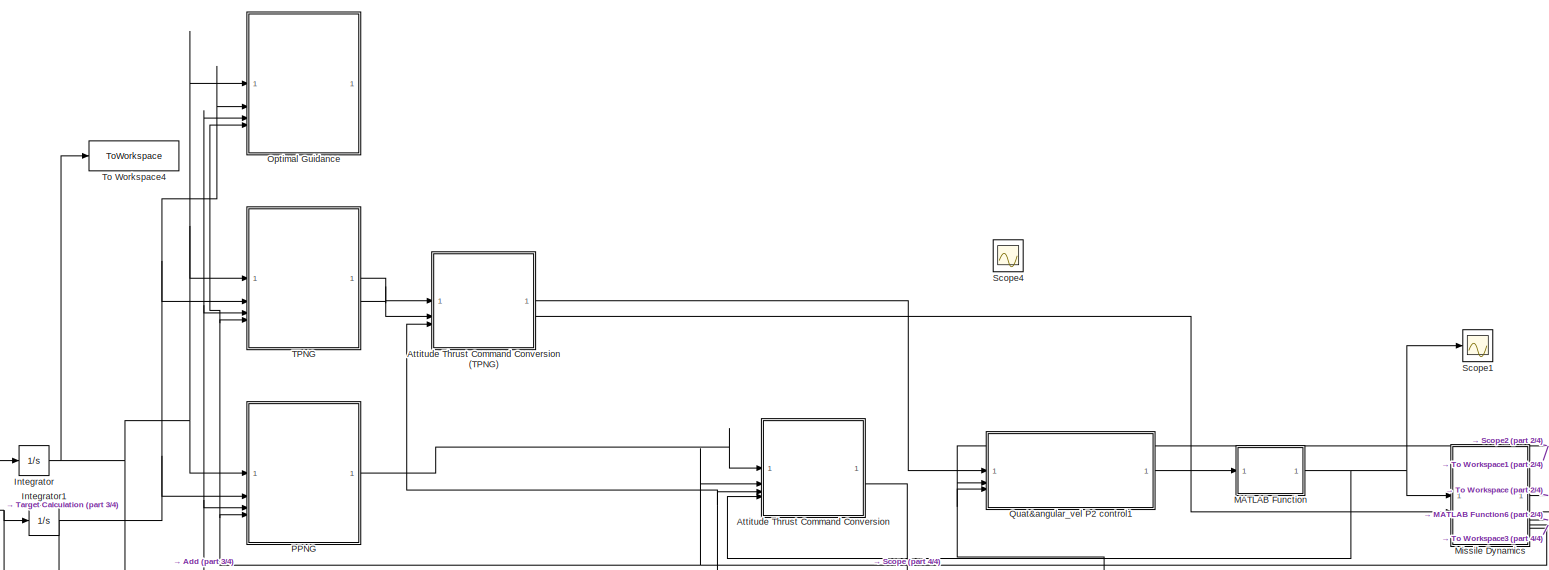
[diagram: root canvas - part 1/4, full width, top band]
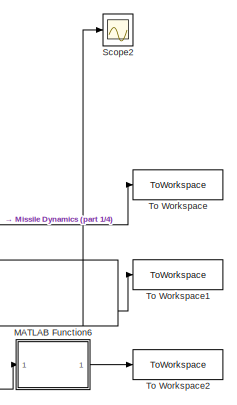
[diagram: root canvas - part 2/4, middle right region]
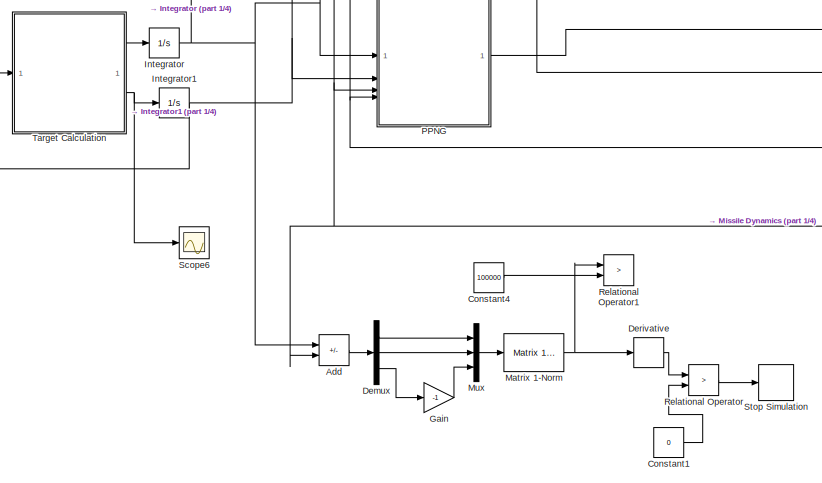
[diagram: root canvas - part 3/4, bottom left region]
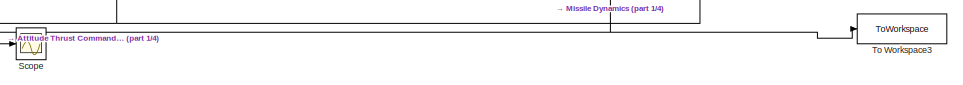
[diagram: root canvas - part 4/4, bottom right region]
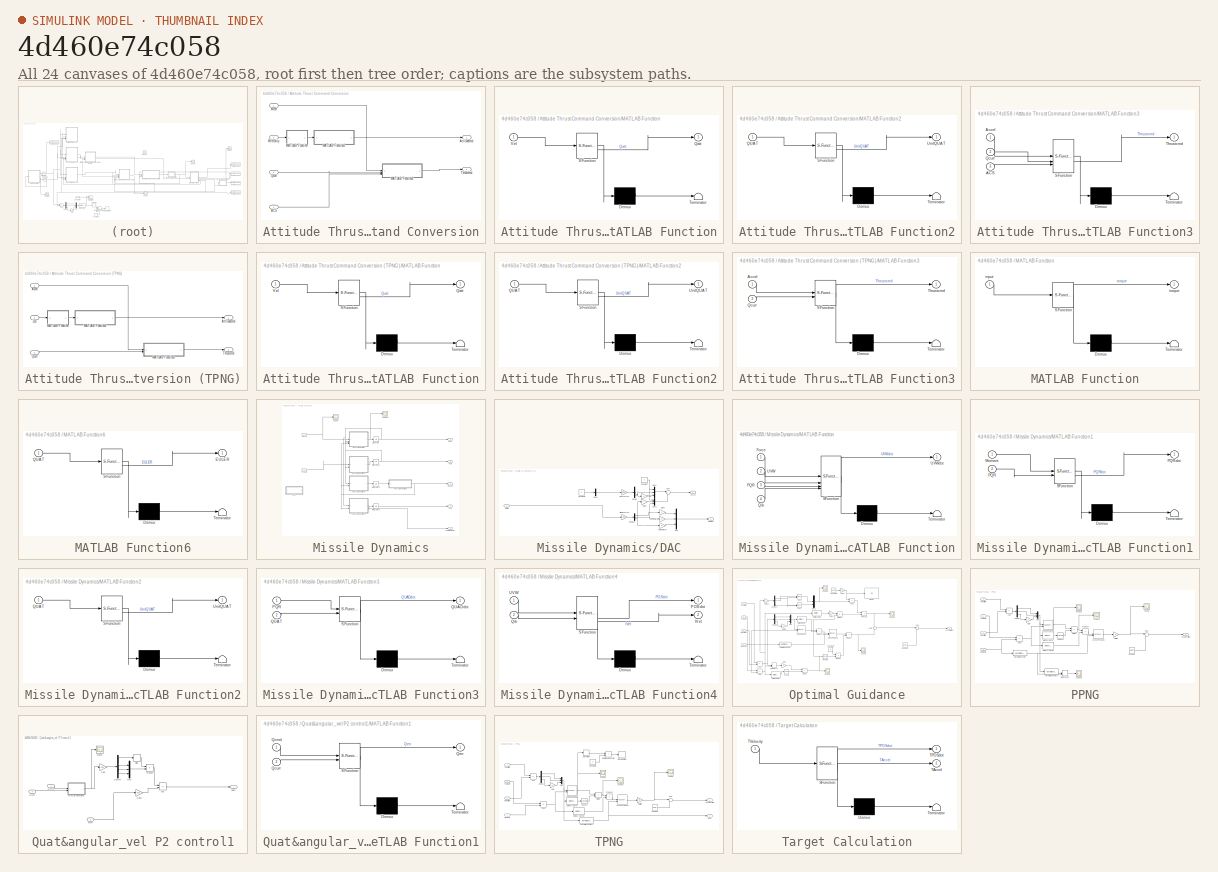
[diagram: thumbnail index - all 24 canvases of the model, root first then tree order]
MODEL slx_4d460e74c058
KIND model
CONFIG AbsTol = auto
CONFIG EnableMultiTasking = off
CONFIG FixedStep = auto
CONFIG InitFcn = DACSpara
CONFIG MaxStep = auto
CONFIG MinStep = auto
CONFIG RelTol = 1e-3
CONFIG SampleTimeConstraint = Unconstrained
CONFIG SolverName = VariableStepAuto
CONFIG StartTime = 0.0
CONFIG StopTime = 60
BLOCK [Sum] Add
  IconShape = rectangular
  Inputs = +-
BLOCK [SubSystem] Attitude Thrust Command Conversion
BLOCK [SubSystem] Attitude Thrust Command Conversion (TPNG)
BLOCK [Inport] Attitude Thrust Command Conversion (TPNG)/Accel
BLOCK [Outport] Attitude Thrust Command Conversion (TPNG)/Attitudecmd
BLOCK [Inport] Attitude Thrust Command Conversion (TPNG)/LoS
  Port = 2
BLOCK [SubSystem] Attitude Thrust Command Conversion (TPNG)/MATLAB Function
  ErrorFcn = Stateflow.Translate.translate
  LibrarySourceBlock = simulink/User-Defined\nFunctions/MATLAB Function
  PermitHierarchicalResolution = ExplicitOnly
  SFBlockType = MATLAB Function
  TreatAsAtomicUnit = on
BLOCK [Demux] Attitude Thrust Command Conversion (TPNG)/MATLAB Function/ Demux 
  Outputs = 1
BLOCK [S-Function] Attitude Thrust Command Conversion (TPNG)/MATLAB Function/ SFunction 
  EnableBusSupport = on
  FunctionName = sf_sfun
  PortCounts = [1 2]
  SFcnIsStateOwnerBlock = off
  SFunctionDeploymentMode = off
  Tag = Stateflow S-Function 15
BLOCK [Terminator] Attitude Thrust Command Conversion (TPNG)/MATLAB Function/ Terminator 
BLOCK [Outport] Attitude Thrust Command Conversion (TPNG)/MATLAB Function/Qatt
BLOCK [Inport] Attitude Thrust Command Conversion (TPNG)/MATLAB Function/Vel
BLOCK [SubSystem] Attitude Thrust Command Conversion (TPNG)/MATLAB Function2
  ErrorFcn = Stateflow.Translate.translate
  LibrarySourceBlock = simulink/User-Defined\nFunctions/MATLAB Function
  PermitHierarchicalResolution = ExplicitOnly
  SFBlockType = MATLAB Function
  TreatAsAtomicUnit = on
BLOCK [Demux] Attitude Thrust Command Conversion (TPNG)/MATLAB Function2/ Demux 
  Outputs = 1
BLOCK [S-Function] Attitude Thrust Command Conversion (TPNG)/MATLAB Function2/ SFunction 
  EnableBusSupport = on
  FunctionName = sf_sfun
  PortCounts = [1 2]
  SFcnIsStateOwnerBlock = off
  SFunctionDeploymentMode = off
  Tag = Stateflow S-Function 16
BLOCK [Terminator] Attitude Thrust Command Conversion (TPNG)/MATLAB Function2/ Terminator 
BLOCK [Inport] Attitude Thrust Command Conversion (TPNG)/MATLAB Function2/QUAT
BLOCK [Outport] Attitude Thrust Command Conversion (TPNG)/MATLAB Function2/UnitQUAT
BLOCK [SubSystem] Attitude Thrust Command Conversion (TPNG)/MATLAB Function3
  ErrorFcn = Stateflow.Translate.translate
  LibrarySourceBlock = simulink/User-Defined\nFunctions/MATLAB Function
  PermitHierarchicalResolution = ExplicitOnly
  SFBlockType = MATLAB Function
  TreatAsAtomicUnit = on
BLOCK [Demux] Attitude Thrust Command Conversion (TPNG)/MATLAB Function3/ Demux 
  Outputs = 1
BLOCK [S-Function] Attitude Thrust Command Conversion (TPNG)/MATLAB Function3/ SFunction 
  EnableBusSupport = on
  FunctionName = sf_sfun
  Parameters = Dmax,M
  PortCounts = [2 2]
  SFcnIsStateOwnerBlock = off
  SFunctionDeploymentMode = off
  Tag = Stateflow S-Function 17
BLOCK [Terminator] Attitude Thrust Command Conversion (TPNG)/MATLAB Function3/ Terminator 
BLOCK [Inport] Attitude Thrust Command Conversion (TPNG)/MATLAB Function3/Accel
BLOCK [Inport] Attitude Thrust Command Conversion (TPNG)/MATLAB Function3/Qcurr
  Port = 2
BLOCK [Outport] Attitude Thrust Command Conversion (TPNG)/MATLAB Function3/Thrustcmd
BLOCK [Inport] Attitude Thrust Command Conversion (TPNG)/Qcurr
  Port = 3
BLOCK [Outport] Attitude Thrust Command Conversion (TPNG)/Thrustcmd
  Port = 2
BLOCK [Inport] Attitude Thrust Command Conversion/ACS
  Port = 4
BLOCK [Inport] Attitude Thrust Command Conversion/Accel
BLOCK [Outport] Attitude Thrust Command Conversion/Attitudecmd
BLOCK [SubSystem] Attitude Thrust Command Conversion/MATLAB Function
  ErrorFcn = Stateflow.Translate.translate
  LibrarySourceBlock = simulink/User-Defined\nFunctions/MATLAB Function
  PermitHierarchicalResolution = ExplicitOnly
  SFBlockType = MATLAB Function
  TreatAsAtomicUnit = on
BLOCK [Demux] Attitude Thrust Command Conversion/MATLAB Function/ Demux 
  Outputs = 1
BLOCK [S-Function] Attitude Thrust Command Conversion/MATLAB Function/ SFunction 
  EnableBusSupport = on
  FunctionName = sf_sfun
  PortCounts = [1 2]
  SFcnIsStateOwnerBlock = off
  SFunctionDeploymentMode = off
  Tag = Stateflow S-Function 11
BLOCK [Terminator] Attitude Thrust Command Conversion/MATLAB Function/ Terminator 
BLOCK [Outport] Attitude Thrust Command Conversion/MATLAB Function/Qatt
BLOCK [Inport] Attitude Thrust Command Conversion/MATLAB Function/Vel
BLOCK [SubSystem] Attitude Thrust Command Conversion/MATLAB Function2
  ErrorFcn = Stateflow.Translate.translate
  LibrarySourceBlock = simulink/User-Defined\nFunctions/MATLAB Function
  PermitHierarchicalResolution = ExplicitOnly
  SFBlockType = MATLAB Function
  TreatAsAtomicUnit = on
BLOCK [Demux] Attitude Thrust Command Conversion/MATLAB Function2/ Demux 
  Outputs = 1
BLOCK [S-Function] Attitude Thrust Command Conversion/MATLAB Function2/ SFunction 
  EnableBusSupport = on
  FunctionName = sf_sfun
  PortCounts = [1 2]
  SFcnIsStateOwnerBlock = off
  SFunctionDeploymentMode = off
  Tag = Stateflow S-Function 30
BLOCK [Terminator] Attitude Thrust Command Conversion/MATLAB Function2/ Terminator 
BLOCK [Inport] Attitude Thrust Command Conversion/MATLAB Function2/QUAT
BLOCK [Outport] Attitude Thrust Command Conversion/MATLAB Function2/UnitQUAT
BLOCK [SubSystem] Attitude Thrust Command Conversion/MATLAB Function3
  ErrorFcn = Stateflow.Translate.translate
  LibrarySourceBlock = simulink/User-Defined\nFunctions/MATLAB Function
  PermitHierarchicalResolution = ExplicitOnly
  SFBlockType = MATLAB Function
  TreatAsAtomicUnit = on
BLOCK [Demux] Attitude Thrust Command Conversion/MATLAB Function3/ Demux 
  Outputs = 1
BLOCK [S-Function] Attitude Thrust Command Conversion/MATLAB Function3/ SFunction 
  EnableBusSupport = on
  FunctionName = sf_sfun
  Parameters = Dmax,M,lx
  PortCounts = [3 2]
  SFcnIsStateOwnerBlock = off
  SFunctionDeploymentMode = off
  Tag = Stateflow S-Function 13
BLOCK [Terminator] Attitude Thrust Command Conversion/MATLAB Function3/ Terminator 
BLOCK [Inport] Attitude Thrust Command Conversion/MATLAB Function3/ACS
  Port = 3
BLOCK [Inport] Attitude Thrust Command Conversion/MATLAB Function3/Accel
BLOCK [Inport] Attitude Thrust Command Conversion/MATLAB Function3/Qcurr
  Port = 2
BLOCK [Outport] Attitude Thrust Command Conversion/MATLAB Function3/Thrustcmd
BLOCK [Inport] Attitude Thrust Command Conversion/MVelocity
  Port = 2
BLOCK [Inport] Attitude Thrust Command Conversion/Qcurr
  Port = 3
BLOCK [Outport] Attitude Thrust Command Conversion/Thrustcmd
  Port = 2
BLOCK [Constant] Constant1
  Value = 0
BLOCK [Constant] Constant4
  Value = 100000
BLOCK [Demux] Demux
  Outputs = 3
BLOCK [Derivative] Derivative
BLOCK [Gain] Gain
  Gain = -1
BLOCK [Integrator] Integrator
  InitialCondition = TPosition
BLOCK [Integrator] Integrator1
  InitialCondition = [0;Va;0]
BLOCK [SubSystem] MATLAB Function
  ErrorFcn = Stateflow.Translate.translate
  LibrarySourceBlock = simulink/User-Defined\nFunctions/MATLAB Function
  PermitHierarchicalResolution = ExplicitOnly
  SFBlockType = MATLAB Function
  TreatAsAtomicUnit = on
BLOCK [Demux] MATLAB Function/ Demux 
  Outputs = 1
BLOCK [S-Function] MATLAB Function/ SFunction 
  EnableBusSupport = on
  FunctionName = sf_sfun
  Parameters = Amax,lx,ly
  PortCounts = [1 2]
  SFcnIsStateOwnerBlock = off
  SFunctionDeploymentMode = off
  Tag = Stateflow S-Function 18
BLOCK [Terminator] MATLAB Function/ Terminator 
BLOCK [Inport] MATLAB Function/input
BLOCK [Outport] MATLAB Function/torque
BLOCK [SubSystem] MATLAB Function6
  ErrorFcn = Stateflow.Translate.translate
  LibrarySourceBlock = simulink/User-Defined\nFunctions/MATLAB Function
  PermitHierarchicalResolution = ExplicitOnly
  SFBlockType = MATLAB Function
  TreatAsAtomicUnit = on
BLOCK [Demux] MATLAB Function6/ Demux 
  Outputs = 1
BLOCK [S-Function] MATLAB Function6/ SFunction 
  EnableBusSupport = on
  FunctionName = sf_sfun
  PortCounts = [1 2]
  SFcnIsStateOwnerBlock = off
  SFunctionDeploymentMode = off
  Tag = Stateflow S-Function 7
BLOCK [Terminator] MATLAB Function6/ Terminator 
BLOCK [Outport] MATLAB Function6/EULER
BLOCK [Inport] MATLAB Function6/QUAT
BLOCK [Reference] Matrix 1-Norm  REF=dspmtrx3/Matrix 
1-Norm
  SourceBlock = dspmtrx3/Matrix \n1-Norm
  SourceType = Matrix 1-Norm
BLOCK [SubSystem] Missile Dynamics
  NameLocation = top
BLOCK [SubSystem] Missile Dynamics/DAC
BLOCK [Inport] Missile Dynamics/DAC/Attdelta
BLOCK [Gain] Missile Dynamics/DAC/Attitude Thrust
  Gain = Amax
BLOCK [Constant] Missile Dynamics/DAC/Constant
  Value = 0
BLOCK [Constant] Missile Dynamics/DAC/Constant1
BLOCK [Demux] Missile Dynamics/DAC/Demux
  Outputs = 3
BLOCK [Demux] Missile Dynamics/DAC/Demux2
  Outputs = 3
BLOCK [Gain] Missile Dynamics/DAC/Divert Thrust
  Gain = Dmax
BLOCK [Outport] Missile Dynamics/DAC/Force
BLOCK [Gain] Missile Dynamics/DAC/Gain
  Gain = -1
BLOCK [Gain] Missile Dynamics/DAC/Gain1
  Gain = -1
BLOCK [Gain] Missile Dynamics/DAC/Gain2
  Gain = ly
BLOCK [Outport] Missile Dynamics/DAC/Moment
  Port = 2
BLOCK [Mux] Missile Dynamics/DAC/Mux
  DisplayOption = bar
  Inputs = 3
BLOCK [Mux] Missile Dynamics/DAC/Mux1
  DisplayOption = bar
  Inputs = 3
BLOCK [Mux] Missile Dynamics/DAC/Mux2
  DisplayOption = bar
  Inputs = 3
BLOCK [Mux] Missile Dynamics/DAC/Mux3
  DisplayOption = bar
  Inputs = 3
BLOCK [Sum] Missile Dynamics/DAC/Sum
  Inputs = |++
BLOCK [Gain] Missile Dynamics/DAC/moment arm
  Gain = lx
BLOCK [Gain] Missile Dynamics/DAC/moment arm1
  Gain = lx
BLOCK [Outport] Missile Dynamics/EULER
  Port = 3
BLOCK [Inport] Missile Dynamics/Force
  Port = 2
BLOCK [Outport] Missile Dynamics/Inerttial Velocity
  Port = 5
BLOCK [Integrator] Missile Dynamics/Integrator
  InitialCondition = UVWinit
BLOCK [Integrator] Missile Dynamics/Integrator1
  InitialCondition = PQRinit
BLOCK [Integrator] Missile Dynamics/Integrator2
  InitialCondition = Quatinit
BLOCK [Integrator] Missile Dynamics/Integrator3
  InitialCondition = POSinit
BLOCK [SubSystem] Missile Dynamics/MATLAB Function
  ErrorFcn = Stateflow.Translate.translate
  PermitHierarchicalResolution = ExplicitOnly
  SFBlockType = MATLAB Function
  TreatAsAtomicUnit = on
BLOCK [Demux] Missile Dynamics/MATLAB Function/ Demux 
  Outputs = 1
BLOCK [S-Function] Missile Dynamics/MATLAB Function/ SFunction 
  EnableBusSupport = on
  FunctionName = sf_sfun
  Parameters = M
  PortCounts = [4 2]
  SFcnIsStateOwnerBlock = off
  SFunctionDeploymentMode = off
  Tag = Stateflow S-Function 2
BLOCK [Terminator] Missile Dynamics/MATLAB Function/ Terminator 
BLOCK [Inport] Missile Dynamics/MATLAB Function/Force
BLOCK [Inport] Missile Dynamics/MATLAB Function/PQR
  Port = 3
BLOCK [Inport] Missile Dynamics/MATLAB Function/Qib
  Port = 4
BLOCK [Inport] Missile Dynamics/MATLAB Function/UVW
  Port = 2
BLOCK [Outport] Missile Dynamics/MATLAB Function/UVWdot
  VectorParamsAs1DForOutWhenUnconnected = off
BLOCK [SubSystem] Missile Dynamics/MATLAB Function1
  ErrorFcn = Stateflow.Translate.translate
  LibrarySourceBlock = simulink/User-Defined\nFunctions/MATLAB Function
  PermitHierarchicalResolution = ExplicitOnly
  SFBlockType = MATLAB Function
  TreatAsAtomicUnit = on
BLOCK [Demux] Missile Dynamics/MATLAB Function1/ Demux 
  Outputs = 1
BLOCK [S-Function] Missile Dynamics/MATLAB Function1/ SFunction 
  EnableBusSupport = on
  FunctionName = sf_sfun
  Parameters = Ixx,Iyy,Izz
  PortCounts = [2 2]
  SFcnIsStateOwnerBlock = off
  SFunctionDeploymentMode = off
  Tag = Stateflow S-Function 1
BLOCK [Terminator] Missile Dynamics/MATLAB Function1/ Terminator 
BLOCK [Inport] Missile Dynamics/MATLAB Function1/Moment
BLOCK [Inport] Missile Dynamics/MATLAB Function1/PQR
  Port = 2
BLOCK [Outport] Missile Dynamics/MATLAB Function1/PQRdot
BLOCK [SubSystem] Missile Dynamics/MATLAB Function2
  ErrorFcn = Stateflow.Translate.translate
  LibrarySourceBlock = simulink/User-Defined\nFunctions/MATLAB Function
  PermitHierarchicalResolution = ExplicitOnly
  SFBlockType = MATLAB Function
  TreatAsAtomicUnit = on
BLOCK [Demux] Missile Dynamics/MATLAB Function2/ Demux 
  Outputs = 1
BLOCK [S-Function] Missile Dynamics/MATLAB Function2/ SFunction 
  EnableBusSupport = on
  FunctionName = sf_sfun
  PortCounts = [1 2]
  SFcnIsStateOwnerBlock = off
  SFunctionDeploymentMode = off
  Tag = Stateflow S-Function 5
BLOCK [Terminator] Missile Dynamics/MATLAB Function2/ Terminator 
BLOCK [Inport] Missile Dynamics/MATLAB Function2/QUAT
BLOCK [Outport] Missile Dynamics/MATLAB Function2/UnitQUAT
BLOCK [SubSystem] Missile Dynamics/MATLAB Function3
  ErrorFcn = Stateflow.Translate.translate
  PermitHierarchicalResolution = ExplicitOnly
  SFBlockType = MATLAB Function
  TreatAsAtomicUnit = on
BLOCK [Demux] Missile Dynamics/MATLAB Function3/ Demux 
  Outputs = 1
BLOCK [S-Function] Missile Dynamics/MATLAB Function3/ SFunction 
  EnableBusSupport = on
  FunctionName = sf_sfun
  PortCounts = [2 2]
  SFcnIsStateOwnerBlock = off
  SFunctionDeploymentMode = off
  Tag = Stateflow S-Function 3
BLOCK [Terminator] Missile Dynamics/MATLAB Function3/ Terminator 
BLOCK [Inport] Missile Dynamics/MATLAB Function3/PQR
BLOCK [Outport] Missile Dynamics/MATLAB Function3/QUADdot
  VectorParamsAs1DForOutWhenUnconnected = off
BLOCK [Inport] Missile Dynamics/MATLAB Function3/QUAT
  Port = 2
BLOCK [SubSystem] Missile Dynamics/MATLAB Function4
  ErrorFcn = Stateflow.Translate.translate
  PermitHierarchicalResolution = ExplicitOnly
  SFBlockType = MATLAB Function
  TreatAsAtomicUnit = on
BLOCK [Demux] Missile Dynamics/MATLAB Function4/ Demux 
  Outputs = 1
BLOCK [S-Function] Missile Dynamics/MATLAB Function4/ SFunction 
  EnableBusSupport = on
  FunctionName = sf_sfun
  PortCounts = [2 3]
  SFcnIsStateOwnerBlock = off
  SFunctionDeploymentMode = off
  Tag = Stateflow S-Function 4
BLOCK [Terminator] Missile Dynamics/MATLAB Function4/ Terminator 
BLOCK [Outport] Missile Dynamics/MATLAB Function4/IVel
  Port = 2
BLOCK [Outport] Missile Dynamics/MATLAB Function4/POSdot
  VectorParamsAs1DForOutWhenUnconnected = off
BLOCK [Inport] Missile Dynamics/MATLAB Function4/Qib
  Port = 2
BLOCK [Inport] Missile Dynamics/MATLAB Function4/UVW
BLOCK [Outport] Missile Dynamics/PQR
  Port = 2
BLOCK [Scope] Missile Dynamics/Scope
  Floating = off
  NumInputPorts = 1
  ScopeSpecificationString = Simulink.scopes.TimeScopeBlockCfg('CurrentConfiguration', extmgr.ConfigurationSet(extmgr.Configuration('Core','General UI',true),extmgr.Configuration('Core','Source UI',true),extmgr.Configuration('Sources','WiredSimulink',true,'DataLoggingVariableName','ScopeData4'),extmgr.Configuration('Visuals','Time Domain',true,'SerializedDisplays',{struct('MinYLimReal','-6768.875','MaxYLimReal','6768.87496','...<+1464ch>
BLOCK [Scope] Missile Dynamics/Scope3
  Floating = off
  NumInputPorts = 1
  ScopeSpecificationString = Simulink.scopes.TimeScopeBlockCfg('CurrentConfiguration', extmgr.ConfigurationSet(extmgr.Configuration('Core','General UI',true),extmgr.Configuration('Core','Source UI',true),extmgr.Configuration('Sources','WiredSimulink',true,'DataLoggingVariableName','ScopeData9'),extmgr.Configuration('Visuals','Time Domain',true,'SerializedDisplays',{struct('MinYLimReal','-83.3866','MaxYLimReal','104.98964','YL...<+1451ch>
BLOCK [Inport] Missile Dynamics/Torque
BLOCK [Outport] Missile Dynamics/UVW
BLOCK [Outport] Missile Dynamics/XYH
  Port = 4
BLOCK [Mux] Mux
  DisplayOption = bar
  Inputs = 3
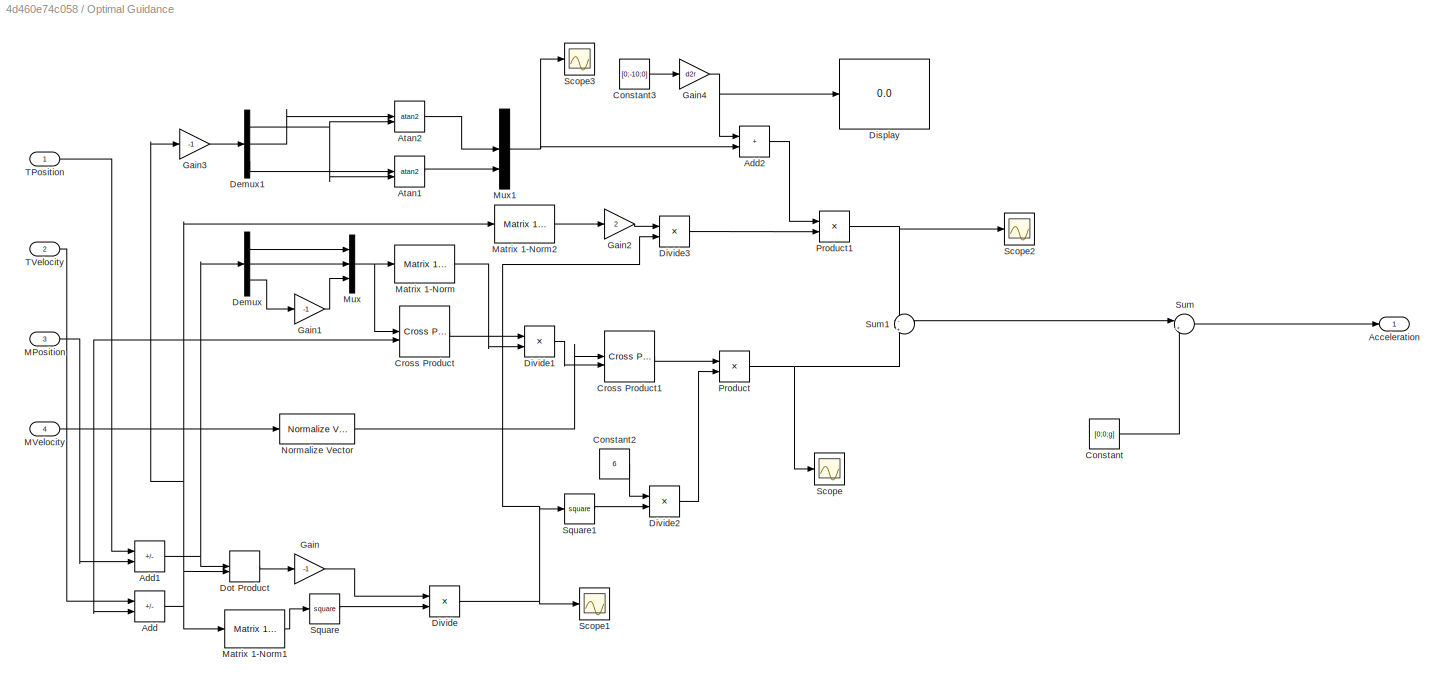
BLOCK [SubSystem] Optimal Guidance
BLOCK [Outport] Optimal Guidance/Acceleration
BLOCK [Sum] Optimal Guidance/Add
  IconShape = rectangular
  Inputs = +-
BLOCK [Sum] Optimal Guidance/Add1
  IconShape = rectangular
  Inputs = +-
BLOCK [Sum] Optimal Guidance/Add2
  IconShape = rectangular
BLOCK [Trigonometry] Optimal Guidance/Atan1
  Operator = atan2
BLOCK [Trigonometry] Optimal Guidance/Atan2
  Operator = atan2
BLOCK [Constant] Optimal Guidance/Constant
  Value = [0;0;g]
BLOCK [Constant] Optimal Guidance/Constant2
  Value = 6
BLOCK [Constant] Optimal Guidance/Constant3
  Value = [0;-10;0]
BLOCK [Reference] Optimal Guidance/Cross Product  REF=matrix_library/Cross Product
  LibrarySourceBlock = simulink/Matrix\nOperations/Cross Product
  SourceBlock = matrix_library/Cross Product
  SourceType = CrossProduct
BLOCK [Reference] Optimal Guidance/Cross Product1  REF=matrix_library/Cross Product
  LibrarySourceBlock = simulink/Matrix\nOperations/Cross Product
  SourceBlock = matrix_library/Cross Product
  SourceType = CrossProduct
BLOCK [Demux] Optimal Guidance/Demux
  Outputs = 3
BLOCK [Demux] Optimal Guidance/Demux1
  Outputs = 3
BLOCK [Display] Optimal Guidance/Display
  Decimation = 1
BLOCK [Product] Optimal Guidance/Divide
  Inputs = */
BLOCK [Product] Optimal Guidance/Divide1
  Inputs = */
BLOCK [Product] Optimal Guidance/Divide2
  Inputs = */
BLOCK [Product] Optimal Guidance/Divide3
  Inputs = */
BLOCK [DotProduct] Optimal Guidance/Dot Product
  OutDataTypeStr = Inherit: Inherit via internal rule
BLOCK [Gain] Optimal Guidance/Gain
  Gain = -1
BLOCK [Gain] Optimal Guidance/Gain1
  Gain = -1
BLOCK [Gain] Optimal Guidance/Gain2
  Gain = 2
BLOCK [Gain] Optimal Guidance/Gain3
  Gain = -1
BLOCK [Gain] Optimal Guidance/Gain4
  Gain = d2r
BLOCK [Inport] Optimal Guidance/MPosition
  Port = 3
BLOCK [Inport] Optimal Guidance/MVelocity
  Port = 4
BLOCK [Reference] Optimal Guidance/Matrix 1-Norm  REF=dspmtrx3/Matrix 
1-Norm
  SourceBlock = dspmtrx3/Matrix \n1-Norm
  SourceType = Matrix 1-Norm
BLOCK [Reference] Optimal Guidance/Matrix 1-Norm1  REF=dspmtrx3/Matrix 
1-Norm
  SourceBlock = dspmtrx3/Matrix \n1-Norm
  SourceType = Matrix 1-Norm
BLOCK [Reference] Optimal Guidance/Matrix 1-Norm2  REF=dspmtrx3/Matrix 
1-Norm
  SourceBlock = dspmtrx3/Matrix \n1-Norm
  SourceType = Matrix 1-Norm
BLOCK [Mux] Optimal Guidance/Mux
  DisplayOption = bar
  Inputs = 3
BLOCK [Mux] Optimal Guidance/Mux1
  DisplayOption = bar
  Inputs = 3
BLOCK [Reference] Optimal Guidance/Normalize Vector  REF=vrlib/Utilities/Normalize Vector
  SourceBlock = vrlib/Utilities/Normalize Vector
  SourceType = Normalize Vector
BLOCK [Product] Optimal Guidance/Product
BLOCK [Product] Optimal Guidance/Product1
BLOCK [Scope] Optimal Guidance/Scope
  Floating = off
  NumInputPorts = 1
  ScopeSpecificationString = Simulink.scopes.TimeScopeBlockCfg('CurrentConfiguration', extmgr.ConfigurationSet(extmgr.Configuration('Core','General UI',true),extmgr.Configuration('Core','Source UI',true),extmgr.Configuration('Sources','WiredSimulink',true,'DataLoggingVariableName','ScopeData1'),extmgr.Configuration('Visuals','Time Domain',true,'SerializedDisplays',{struct('MinYLimReal','-70076136429.61131','MaxYLimReal','1615...<+1499ch>
BLOCK [Scope] Optimal Guidance/Scope1
  Floating = off
  NumInputPorts = 1
  ScopeSpecificationString = Simulink.scopes.TimeScopeBlockCfg('CurrentConfiguration', extmgr.ConfigurationSet(extmgr.Configuration('Core','General UI',true),extmgr.Configuration('Core','Source UI',true),extmgr.Configuration('Sources','WiredSimulink',true,'DataLoggingVariableName','ScopeData2'),extmgr.Configuration('Visuals','Time Domain',true,'SerializedDisplays',{struct('MinYLimReal','-2.65264','MaxYLimReal','33.8738','YLab...<+1413ch>
BLOCK [Scope] Optimal Guidance/Scope2
  Floating = off
  NumInputPorts = 1
  ScopeSpecificationString = Simulink.scopes.TimeScopeBlockCfg('CurrentConfiguration', extmgr.ConfigurationSet(extmgr.Configuration('Core','General UI',true),extmgr.Configuration('Core','Source UI',true),extmgr.Configuration('Sources','WiredSimulink',true,'DataLoggingVariableName','ScopeData3'),extmgr.Configuration('Visuals','Time Domain',true,'SerializedDisplays',{struct('MinYLimReal','-14092128.95872','MaxYLimReal','2837584...<+1474ch>
BLOCK [Scope] Optimal Guidance/Scope3
  Floating = off
  NumInputPorts = 1
  ScopeSpecificationString = Simulink.scopes.TimeScopeBlockCfg('CurrentConfiguration', extmgr.ConfigurationSet(extmgr.Configuration('Core','General UI',true),extmgr.Configuration('Core','Source UI',true),extmgr.Configuration('Sources','WiredSimulink',true,'DataLoggingVariableName','ScopeData5'),extmgr.Configuration('Visuals','Time Domain',true,'SerializedDisplays',{struct('MinYLimReal','-0.47592','MaxYLimReal','1.83389','YLab...<+1413ch>
BLOCK [Math] Optimal Guidance/Square
  Operator = square
BLOCK [Math] Optimal Guidance/Square1
  Operator = square
BLOCK [Sum] Optimal Guidance/Sum
  Inputs = |+-
BLOCK [Sum] Optimal Guidance/Sum1
  Inputs = -|+
BLOCK [Inport] Optimal Guidance/TPosition
BLOCK [Inport] Optimal Guidance/TVelocity
  Port = 2
BLOCK [SubSystem] PPNG
BLOCK [Outport] PPNG/Acceleration
BLOCK [Sum] PPNG/Add
  IconShape = rectangular
  Inputs = +-
BLOCK [Sum] PPNG/Add1
  IconShape = rectangular
  Inputs = +-
BLOCK [Constant] PPNG/Constant
  Value = [0;0;g]
BLOCK [Reference] PPNG/Cross Product  REF=matrix_library/Cross Product
  LibrarySourceBlock = simulink/Matrix\nOperations/Cross Product
  SourceBlock = matrix_library/Cross Product
  SourceType = CrossProduct
BLOCK [Reference] PPNG/Cross Product1  REF=matrix_library/Cross Product
  LibrarySourceBlock = simulink/Matrix\nOperations/Cross Product
  SourceBlock = matrix_library/Cross Product
  SourceType = CrossProduct
BLOCK [Demux] PPNG/Demux
  Outputs = 3
BLOCK [Product] PPNG/Divide
  Inputs = */
BLOCK [DotProduct] PPNG/Dot Product
  OutDataTypeStr = Inherit: Inherit via internal rule
BLOCK [Gain] PPNG/Gain
  Gain = -1
BLOCK [Inport] PPNG/MPosition
  Port = 3
BLOCK [Inport] PPNG/MVelocity
  Port = 4
BLOCK [Reference] PPNG/Matrix 1-Norm  REF=dspmtrx3/Matrix 
1-Norm
  SourceBlock = dspmtrx3/Matrix \n1-Norm
  SourceType = Matrix 1-Norm
BLOCK [Reference] PPNG/Matrix 1-Norm1  REF=dspmtrx3/Matrix 
1-Norm
  SourceBlock = dspmtrx3/Matrix \n1-Norm
  SourceType = Matrix 1-Norm
BLOCK [Gain] PPNG/Multiply
  Gain = N
BLOCK [Mux] PPNG/Mux
  DisplayOption = bar
  Inputs = 3
BLOCK [Reference] PPNG/Normalize Vector  REF=vrlib/Utilities/Normalize Vector
  SourceBlock = vrlib/Utilities/Normalize Vector
  SourceType = Normalize Vector
BLOCK [Reference] PPNG/Normalize Vector1  REF=vrlib/Utilities/Normalize Vector
  SourceBlock = vrlib/Utilities/Normalize Vector
  SourceType = Normalize Vector
BLOCK [Product] PPNG/Product
BLOCK [Scope] PPNG/Scope
  Floating = off
  NumInputPorts = 1
  ScopeSpecificationString = Simulink.scopes.TimeScopeBlockCfg('CurrentConfiguration', extmgr.ConfigurationSet(extmgr.Configuration('Core','General UI',true),extmgr.Configuration('Core','Source UI',true),extmgr.Configuration('Sources','WiredSimulink',true,'DataLoggingVariableName','ScopeData5'),extmgr.Configuration('Visuals','Time Domain',true,'SerializedDisplays',{struct('MinYLimReal','-1377262499913.35889','MaxYLimReal','15...<+1514ch>
BLOCK [Scope] PPNG/Scope1
  Floating = off
  NumInputPorts = 1
  ScopeSpecificationString = Simulink.scopes.TimeScopeBlockCfg('CurrentConfiguration', extmgr.ConfigurationSet(extmgr.Configuration('Core','General UI',true),extmgr.Configuration('Core','Source UI',true),extmgr.Configuration('Sources','WiredSimulink',true,'DataLoggingVariableName','ScopeData6'),extmgr.Configuration('Visuals','Time Domain',true,'SerializedDisplays',{struct('MinYLimReal','-3743.29351','MaxYLimReal','33821.52739...<+1472ch>
BLOCK [Scope] PPNG/Scope2
  Floating = off
  NumInputPorts = 1
  ScopeSpecificationString = Simulink.scopes.TimeScopeBlockCfg('CurrentConfiguration', extmgr.ConfigurationSet(extmgr.Configuration('Core','General UI',true),extmgr.Configuration('Core','Source UI',true),extmgr.Configuration('Sources','WiredSimulink',true,'DataLoggingVariableName','ScopeData7'),extmgr.Configuration('Visuals','Time Domain',true,'SerializedDisplays',{struct('MinYLimReal','-23896560.26406','MaxYLimReal','6323363...<+1466ch>
BLOCK [Scope] PPNG/Scope3
  Floating = off
  NumInputPorts = 1
  ScopeSpecificationString = Simulink.scopes.TimeScopeBlockCfg('CurrentConfiguration', extmgr.ConfigurationSet(extmgr.Configuration('Core','General UI',true),extmgr.Configuration('Core','Source UI',true),extmgr.Configuration('Sources','WiredSimulink',true,'DataLoggingVariableName','ScopeData8'),extmgr.Configuration('Visuals','Time Domain',true,'SerializedDisplays',{struct('MinYLimReal','0.78874','MaxYLimReal','0.9975','YLabel...<+1413ch>
BLOCK [Math] PPNG/Square
  Operator = square
BLOCK [Sum] PPNG/Sum
  Inputs = |+-
BLOCK [Inport] PPNG/TPosition
BLOCK [Inport] PPNG/TVelocity
  Port = 2
BLOCK [SubSystem] Quat&angular_vel P2 control1
BLOCK [Sum] Quat&angular_vel P2 control1/Add
  IconShape = rectangular
  Inputs = +-
BLOCK [Demux] Quat&angular_vel P2 control1/Demux
BLOCK [Gain] Quat&angular_vel P2 control1/Gain
  Gain = Kp1
BLOCK [Gain] Quat&angular_vel P2 control1/Gain1
  Gain = Kp2
BLOCK [SubSystem] Quat&angular_vel P2 control1/MATLAB Function1
  ErrorFcn = Stateflow.Translate.translate
  LibrarySourceBlock = simulink/User-Defined\nFunctions/MATLAB Function
  PermitHierarchicalResolution = ExplicitOnly
  SFBlockType = MATLAB Function
  TreatAsAtomicUnit = on
BLOCK [Demux] Quat&angular_vel P2 control1/MATLAB Function1/ Demux 
  Outputs = 1
BLOCK [S-Function] Quat&angular_vel P2 control1/MATLAB Function1/ SFunction 
  EnableBusSupport = on
  FunctionName = sf_sfun
  PortCounts = [2 2]
  SFcnIsStateOwnerBlock = off
  SFunctionDeploymentMode = off
  Tag = Stateflow S-Function 6
BLOCK [Terminator] Quat&angular_vel P2 control1/MATLAB Function1/ Terminator 
BLOCK [Inport] Quat&angular_vel P2 control1/MATLAB Function1/Qcmd
BLOCK [Inport] Quat&angular_vel P2 control1/MATLAB Function1/Qcurr
  Port = 2
BLOCK [Outport] Quat&angular_vel P2 control1/MATLAB Function1/Qerr
BLOCK [Mux] Quat&angular_vel P2 control1/Mux
  DisplayOption = bar
  Inputs = 3
BLOCK [Inport] Quat&angular_vel P2 control1/PQR
  Port = 2
BLOCK [Product] Quat&angular_vel P2 control1/Product
BLOCK [Inport] Quat&angular_vel P2 control1/Qcmd
BLOCK [Inport] Quat&angular_vel P2 control1/Qcurr
  NameLocation = top
  Port = 3
BLOCK [Scope] Quat&angular_vel P2 control1/Scope
  Floating = off
  NumInputPorts = 1
  ScopeSpecificationString = Simulink.scopes.TimeScopeBlockCfg('CurrentConfiguration', extmgr.ConfigurationSet(extmgr.Configuration('Core','General UI',true),extmgr.Configuration('Core','Source UI',true),extmgr.Configuration('Sources','WiredSimulink',true,'DataLoggingVariableName','ScopeData1'),extmgr.Configuration('Visuals','Time Domain',true,'SerializedDisplays',{struct('MinYLimReal','-1.18828','MaxYLimReal','1.24314','YLab...<+1469ch>
BLOCK [Signum] Quat&angular_vel P2 control1/Sign
BLOCK [Outport] Quat&angular_vel P2 control1/delta
BLOCK [RelationalOperator] Relational Operator
  InputSameDT = off
  Operator = >
  OutDataTypeStr = boolean
  RndMeth = Simplest
BLOCK [RelationalOperator] Relational Operator1
  InputSameDT = off
  Operator = >
  OutDataTypeStr = boolean
  RndMeth = Simplest
BLOCK [Scope] Scope
  Floating = off
  NumInputPorts = 1
  ScopeSpecificationString = Simulink.scopes.TimeScopeBlockCfg('CurrentConfiguration', extmgr.ConfigurationSet(extmgr.Configuration('Core','General UI',true),extmgr.Configuration('Core','Source UI',true),extmgr.Configuration('Sources','WiredSimulink',true,'DataLoggingVariableName','ScopeData1'),extmgr.Configuration('Visuals','Time Domain',true,'SerializedDisplays',{struct('MinYLimReal','-973.39041','MaxYLimReal','8173.89113',...<+1553ch>
BLOCK [Scope] Scope1
  Floating = off
  NumInputPorts = 1
  ScopeSpecificationString = Simulink.scopes.TimeScopeBlockCfg('CurrentConfiguration', extmgr.ConfigurationSet(extmgr.Configuration('Core','General UI',true),extmgr.Configuration('Core','Source UI',true),extmgr.Configuration('Sources','WiredSimulink',true,'DataLoggingVariableName','ScopeData2'),extmgr.Configuration('Visuals','Time Domain',true,'SerializedDisplays',{struct('MinYLimReal','-67.43318','MaxYLimReal','113.09851','Y...<+1455ch>
BLOCK [Scope] Scope2
  Floating = off
  NumInputPorts = 1
  ScopeSpecificationString = Simulink.scopes.TimeScopeBlockCfg('CurrentConfiguration', extmgr.ConfigurationSet(extmgr.Configuration('Core','General UI',true),extmgr.Configuration('Core','Source UI',true),extmgr.Configuration('Sources','WiredSimulink',true,'DataLoggingVariableName','ScopeData4'),extmgr.Configuration('Visuals','Time Domain',true,'SerializedDisplays',{struct('MinYLimReal','-0.21574','MaxYLimReal','0.38664','YLab...<+1454ch>
BLOCK [Scope] Scope4
  Floating = off
  IOType = viewer
  NumInputPorts = 1
  ScopeSpecificationString = Simulink.scopes.TimeScopeBlockCfg('CurrentConfiguration', extmgr.ConfigurationSet(extmgr.Configuration('Core','General UI',true),extmgr.Configuration('Core','Source UI',true),extmgr.Configuration('Sources','WiredSimulink',true,'DataLoggingVariableName','ScopeData4'),extmgr.Configuration('Visuals','Time Domain',true,'SerializedDisplays',{struct('MinYLimReal','-26.09943','MaxYLimReal','26.04912','YL...<+1394ch>
BLOCK [Scope] Scope6
  Floating = off
  NumInputPorts = 1
  ScopeSpecificationString = Simulink.scopes.TimeScopeBlockCfg('CurrentConfiguration', extmgr.ConfigurationSet(extmgr.Configuration('Core','General UI',true),extmgr.Configuration('Core','Source UI',true),extmgr.Configuration('Sources','WiredSimulink',true,'DataLoggingVariableName','ScopeData2'),extmgr.Configuration('Visuals','Time Domain',true,'SerializedDisplays',{struct('MinYLimReal','-1.0532','MaxYLimReal','9.4788','YLabel...<+1467ch>
BLOCK [Stop] Stop Simulation
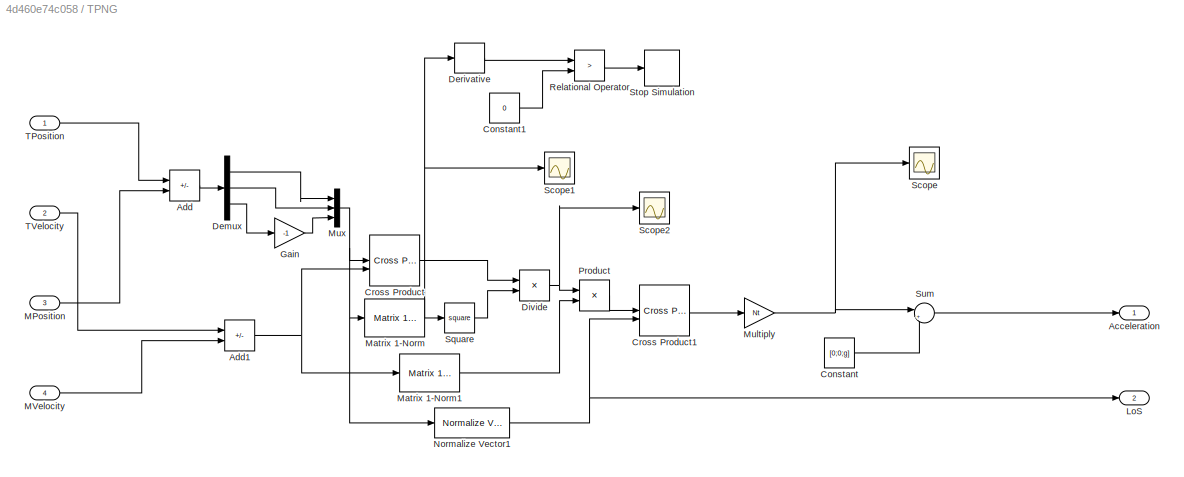
BLOCK [SubSystem] TPNG
BLOCK [Outport] TPNG/Acceleration
BLOCK [Sum] TPNG/Add
  IconShape = rectangular
  Inputs = +-
BLOCK [Sum] TPNG/Add1
  IconShape = rectangular
  Inputs = +-
BLOCK [Constant] TPNG/Constant
  Value = [0;0;g]
BLOCK [Constant] TPNG/Constant1
  Value = 0
BLOCK [Reference] TPNG/Cross Product  REF=matrix_library/Cross Product
  LibrarySourceBlock = simulink/Matrix\nOperations/Cross Product
  SourceBlock = matrix_library/Cross Product
  SourceType = CrossProduct
BLOCK [Reference] TPNG/Cross Product1  REF=matrix_library/Cross Product
  LibrarySourceBlock = simulink/Matrix\nOperations/Cross Product
  SourceBlock = matrix_library/Cross Product
  SourceType = CrossProduct
BLOCK [Demux] TPNG/Demux
  Outputs = 3
BLOCK [Derivative] TPNG/Derivative
BLOCK [Product] TPNG/Divide
  Inputs = */
BLOCK [Gain] TPNG/Gain
  Gain = -1
BLOCK [Outport] TPNG/LoS
  Port = 2
BLOCK [Inport] TPNG/MPosition
  Port = 3
BLOCK [Inport] TPNG/MVelocity
  Port = 4
BLOCK [Reference] TPNG/Matrix 1-Norm  REF=dspmtrx3/Matrix 
1-Norm
  SourceBlock = dspmtrx3/Matrix \n1-Norm
  SourceType = Matrix 1-Norm
BLOCK [Reference] TPNG/Matrix 1-Norm1  REF=dspmtrx3/Matrix 
1-Norm
  SourceBlock = dspmtrx3/Matrix \n1-Norm
  SourceType = Matrix 1-Norm
BLOCK [Gain] TPNG/Multiply
  Gain = Nt
BLOCK [Mux] TPNG/Mux
  DisplayOption = bar
  Inputs = 3
BLOCK [Reference] TPNG/Normalize Vector1  REF=vrlib/Utilities/Normalize Vector
  SourceBlock = vrlib/Utilities/Normalize Vector
  SourceType = Normalize Vector
BLOCK [Product] TPNG/Product
BLOCK [RelationalOperator] TPNG/Relational Operator
  InputSameDT = off
  Operator = >
  OutDataTypeStr = boolean
  RndMeth = Simplest
BLOCK [Scope] TPNG/Scope
  Floating = off
  NumInputPorts = 1
  ScopeSpecificationString = Simulink.scopes.TimeScopeBlockCfg('CurrentConfiguration', extmgr.ConfigurationSet(extmgr.Configuration('Core','General UI',true),extmgr.Configuration('Core','Source UI',true),extmgr.Configuration('Sources','WiredSimulink',true,'DataLoggingVariableName','ScopeData5'),extmgr.Configuration('Visuals','Time Domain',true,'SerializedDisplays',{struct('MinYLimReal','-3286.68973','MaxYLimReal','2209.38041'...<+1444ch>
BLOCK [Scope] TPNG/Scope1
  Floating = off
  NumInputPorts = 1
  ScopeSpecificationString = Simulink.scopes.TimeScopeBlockCfg('CurrentConfiguration', extmgr.ConfigurationSet(extmgr.Configuration('Core','General UI',true),extmgr.Configuration('Core','Source UI',true),extmgr.Configuration('Sources','WiredSimulink',true,'DataLoggingVariableName','ScopeData6'),extmgr.Configuration('Visuals','Time Domain',true,'SerializedDisplays',{struct('MinYLimReal','-3743.29351','MaxYLimReal','33821.52739...<+1472ch>
BLOCK [Scope] TPNG/Scope2
  Floating = off
  NumInputPorts = 1
  ScopeSpecificationString = Simulink.scopes.TimeScopeBlockCfg('CurrentConfiguration', extmgr.ConfigurationSet(extmgr.Configuration('Core','General UI',true),extmgr.Configuration('Core','Source UI',true),extmgr.Configuration('Sources','WiredSimulink',true,'DataLoggingVariableName','ScopeData7'),extmgr.Configuration('Visuals','Time Domain',true,'SerializedDisplays',{struct('MinYLimReal','-0.12772','MaxYLimReal','0.0172','YLabe...<+1414ch>
BLOCK [Math] TPNG/Square
  Operator = square
BLOCK [Stop] TPNG/Stop Simulation
BLOCK [Sum] TPNG/Sum
  Inputs = |+-
BLOCK [Inport] TPNG/TPosition
BLOCK [Inport] TPNG/TVelocity
  Port = 2
BLOCK [SubSystem] Target Calculation
  ErrorFcn = Stateflow.Translate.translate
  LibrarySourceBlock = simulink/User-Defined\nFunctions/MATLAB Function
  PermitHierarchicalResolution = ExplicitOnly
  SFBlockType = MATLAB Function
  TreatAsAtomicUnit = on
BLOCK [Demux] Target Calculation/ Demux 
  Outputs = 1
BLOCK [S-Function] Target Calculation/ SFunction 
  EnableBusSupport = on
  FunctionName = sf_sfun
  Parameters = g
  PortCounts = [1 3]
  SFcnIsStateOwnerBlock = off
  SFunctionDeploymentMode = off
  Tag = Stateflow S-Function 8
BLOCK [Terminator] Target Calculation/ Terminator 
BLOCK [Outport] Target Calculation/TAccel
  Port = 2
BLOCK [Outport] Target Calculation/TPOSdot
BLOCK [Inport] Target Calculation/TVelocity
BLOCK [ToWorkspace] To Workspace
  FixptAsFi = on
  MaxDataPoints = inf
  SampleTime = -1
  SaveFormat = Timeseries
  VariableName = UVW
BLOCK [ToWorkspace] To Workspace1
  FixptAsFi = on
  MaxDataPoints = inf
  SampleTime = -1
  SaveFormat = Timeseries
  VariableName = PQR
BLOCK [ToWorkspace] To Workspace2
  FixptAsFi = on
  MaxDataPoints = inf
  SampleTime = -1
  SaveFormat = Timeseries
  VariableName = EULER
BLOCK [ToWorkspace] To Workspace3
  FixptAsFi = on
  MaxDataPoints = inf
  SampleTime = -1
  SaveFormat = Timeseries
  VariableName = POSITION
BLOCK [ToWorkspace] To Workspace4
  FixptAsFi = on
  MaxDataPoints = inf
  SampleTime = -1
  SaveFormat = Timeseries
  VariableName = TPOS
LINE Add:1 -> Demux:1
LINE Attitude Thrust Command Conversion (TPNG)/Accel:1 -> Attitude Thrust Command Conversion (TPNG)/MATLAB Function3:1
LINE Attitude Thrust Command Conversion (TPNG)/LoS:1 -> Attitude Thrust Command Conversion (TPNG)/MATLAB Function:1
LINE Attitude Thrust Command Conversion (TPNG)/MATLAB Function2:1 -> Attitude Thrust Command Conversion (TPNG)/Attitudecmd:1
LINE Attitude Thrust Command Conversion (TPNG)/MATLAB Function3:1 -> Attitude Thrust Command Conversion (TPNG)/Thrustcmd:1
LINE Attitude Thrust Command Conversion (TPNG)/MATLAB Function:1 -> Attitude Thrust Command Conversion (TPNG)/MATLAB Function2:1
LINE Attitude Thrust Command Conversion (TPNG)/Qcurr:1 -> Attitude Thrust Command Conversion (TPNG)/MATLAB Function3:2
LINE Attitude Thrust Command Conversion (TPNG):1 -> Quat&angular_vel P2 control1:1
LINE Attitude Thrust Command Conversion (TPNG):2 -> Missile Dynamics:2
LINE Attitude Thrust Command Conversion/ACS:1 -> Attitude Thrust Command Conversion/MATLAB Function3:3
LINE Attitude Thrust Command Conversion/Accel:1 -> Attitude Thrust Command Conversion/MATLAB Function3:1
LINE Attitude Thrust Command Conversion/MATLAB Function2:1 -> Attitude Thrust Command Conversion/Attitudecmd:1
LINE Attitude Thrust Command Conversion/MATLAB Function3:1 -> Attitude Thrust Command Conversion/Thrustcmd:1
LINE Attitude Thrust Command Conversion/MATLAB Function:1 -> Attitude Thrust Command Conversion/MATLAB Function2:1
LINE Attitude Thrust Command Conversion/MVelocity:1 -> Attitude Thrust Command Conversion/MATLAB Function:1
LINE Attitude Thrust Command Conversion/Qcurr:1 -> Attitude Thrust Command Conversion/MATLAB Function3:2
LINE Attitude Thrust Command Conversion:2 -> Scope:1
LINE Constant1:1 -> Relational Operator:2
LINE Constant4:1 -> Relational Operator1:2
LINE Demux:1 -> Mux:1
LINE Demux:2 -> Mux:2
LINE Demux:3 -> Gain:1
LINE Derivative:1 -> Relational Operator:1
LINE Gain:1 -> Mux:3
NET Integrator1:1 -> Optimal Guidance:2, PPNG:2, TPNG:2, Target Calculation:1
NET Integrator:1 -> Add:1, Optimal Guidance:1, PPNG:1, TPNG:1, To Workspace4:1
LINE MATLAB Function6:1 -> To Workspace2:1
NET MATLAB Function:1 -> Attitude Thrust Command Conversion:4, Missile Dynamics:1, Scope1:1
NET Matrix 1-Norm:1 -> Derivative:1, Relational Operator1:1
LINE Missile Dynamics/DAC/Attdelta:1 -> Missile Dynamics/DAC/Attitude Thrust:1
LINE Missile Dynamics/DAC/Attitude Thrust:1 -> Missile Dynamics/DAC/Demux2:1
LINE Missile Dynamics/DAC/Constant1:1 -> Missile Dynamics/DAC/Mux3:2
NET Missile Dynamics/DAC/Constant:1 -> Missile Dynamics/DAC/Mux1:1, Missile Dynamics/DAC/Mux2:1
LINE Missile Dynamics/DAC/Demux2:1 -> Missile Dynamics/DAC/Gain2:1
NET Missile Dynamics/DAC/Demux2:2 -> Missile Dynamics/DAC/Mux2:3, Missile Dynamics/DAC/moment arm1:1
NET Missile Dynamics/DAC/Demux2:3 -> Missile Dynamics/DAC/Gain1:1, Missile Dynamics/DAC/moment arm:1
LINE Missile Dynamics/DAC/Demux:2 -> Missile Dynamics/DAC/Gain:1
LINE Missile Dynamics/DAC/Demux:3 -> Missile Dynamics/DAC/Mux1:2
LINE Missile Dynamics/DAC/Divert Thrust:1 -> Missile Dynamics/DAC/Demux:1
LINE Missile Dynamics/DAC/Gain1:1 -> Missile Dynamics/DAC/Mux2:2
LINE Missile Dynamics/DAC/Gain2:1 -> Missile Dynamics/DAC/Mux:1
LINE Missile Dynamics/DAC/Gain:1 -> Missile Dynamics/DAC/Mux1:3
LINE Missile Dynamics/DAC/Mux1:1 -> Missile Dynamics/DAC/Sum:1
LINE Missile Dynamics/DAC/Mux2:1 -> Missile Dynamics/DAC/Sum:2
LINE Missile Dynamics/DAC/Mux3:1 -> Missile Dynamics/DAC/Divert Thrust:1
LINE Missile Dynamics/DAC/Mux:1 -> Missile Dynamics/DAC/Moment:1
LINE Missile Dynamics/DAC/Sum:1 -> Missile Dynamics/DAC/Force:1
LINE Missile Dynamics/DAC/moment arm1:1 -> Missile Dynamics/DAC/Mux:2
LINE Missile Dynamics/DAC/moment arm:1 -> Missile Dynamics/DAC/Mux:3
NET Missile Dynamics/Force:1 -> Missile Dynamics/MATLAB Function:1, Missile Dynamics/Scope:1
NET Missile Dynamics/Integrator1:1 -> Missile Dynamics/MATLAB Function1:2, Missile Dynamics/MATLAB Function3:1, Missile Dynamics/MATLAB Function:3, Missile Dynamics/PQR:1
LINE Missile Dynamics/Integrator2:1 -> Missile Dynamics/MATLAB Function2:1
LINE Missile Dynamics/Integrator3:1 -> Missile Dynamics/XYH:1
NET Missile Dynamics/Integrator:1 -> Missile Dynamics/MATLAB Function4:1, Missile Dynamics/MATLAB Function:2, Missile Dynamics/UVW:1
LINE Missile Dynamics/MATLAB Function1:1 -> Missile Dynamics/Integrator1:1
NET Missile Dynamics/MATLAB Function2:1 -> Missile Dynamics/EULER:1, Missile Dynamics/MATLAB Function3:2, Missile Dynamics/MATLAB Function4:2, Missile Dynamics/MATLAB Function:4
LINE Missile Dynamics/MATLAB Function3:1 -> Missile Dynamics/Integrator2:1
LINE Missile Dynamics/MATLAB Function4:1 -> Missile Dynamics/Integrator3:1
LINE Missile Dynamics/MATLAB Function4:2 -> Missile Dynamics/Inerttial Velocity:1
NET Missile Dynamics/MATLAB Function:1 -> Missile Dynamics/Integrator:1, Missile Dynamics/Scope3:1
LINE Missile Dynamics/Torque:1 -> Missile Dynamics/MATLAB Function1:1
LINE Missile Dynamics:1 -> To Workspace:1
NET Missile Dynamics:2 -> Quat&angular_vel P2 control1:2, Scope2:1, To Workspace1:1
NET Missile Dynamics:3 -> Attitude Thrust Command Conversion (TPNG):3, Attitude Thrust Command Conversion:3, MATLAB Function6:1, Quat&angular_vel P2 control1:3
NET Missile Dynamics:4 -> Add:2, Optimal Guidance:3, PPNG:3, TPNG:3, To Workspace3:1
NET Missile Dynamics:5 -> Attitude Thrust Command Conversion:2, Optimal Guidance:4, PPNG:4, TPNG:4
LINE Mux:1 -> Matrix 1-Norm:1
NET Optimal Guidance/Add1:1 -> Optimal Guidance/Demux:1, Optimal Guidance/Dot Product:1
LINE Optimal Guidance/Add2:1 -> Optimal Guidance/Product1:1
NET Optimal Guidance/Add:1 -> Optimal Guidance/Dot Product:2, Optimal Guidance/Gain3:1, Optimal Guidance/Matrix 1-Norm1:1, Optimal Guidance/Matrix 1-Norm2:1
LINE Optimal Guidance/Atan1:1 -> Optimal Guidance/Mux1:3
LINE Optimal Guidance/Atan2:1 -> Optimal Guidance/Mux1:2
LINE Optimal Guidance/Constant2:1 -> Optimal Guidance/Divide2:1
LINE Optimal Guidance/Constant3:1 -> Optimal Guidance/Gain4:1
LINE Optimal Guidance/Constant:1 -> Optimal Guidance/Sum:2
LINE Optimal Guidance/Cross Product1:1 -> Optimal Guidance/Product:1
LINE Optimal Guidance/Cross Product:1 -> Optimal Guidance/Divide1:1
NET Optimal Guidance/Demux1:1 -> Optimal Guidance/Atan1:2, Optimal Guidance/Atan2:2
LINE Optimal Guidance/Demux1:2 -> Optimal Guidance/Atan2:1
LINE Optimal Guidance/Demux1:3 -> Optimal Guidance/Atan1:1
LINE Optimal Guidance/Demux:1 -> Optimal Guidance/Mux:1
LINE Optimal Guidance/Demux:2 -> Optimal Guidance/Mux:2
LINE Optimal Guidance/Demux:3 -> Optimal Guidance/Gain1:1
LINE Optimal Guidance/Divide1:1 -> Optimal Guidance/Cross Product1:2
LINE Optimal Guidance/Divide2:1 -> Optimal Guidance/Product:2
LINE Optimal Guidance/Divide3:1 -> Optimal Guidance/Product1:2
NET Optimal Guidance/Divide:1 -> Optimal Guidance/Divide3:2, Optimal Guidance/Scope1:1, Optimal Guidance/Square1:1
LINE Optimal Guidance/Dot Product:1 -> Optimal Guidance/Gain:1
LINE Optimal Guidance/Gain1:1 -> Optimal Guidance/Mux:3
LINE Optimal Guidance/Gain2:1 -> Optimal Guidance/Divide3:1
LINE Optimal Guidance/Gain3:1 -> Optimal Guidance/Demux1:1
NET Optimal Guidance/Gain4:1 -> Optimal Guidance/Add2:1, Optimal Guidance/Display:1
LINE Optimal Guidance/Gain:1 -> Optimal Guidance/Divide:1
LINE Optimal Guidance/MPosition:1 -> Optimal Guidance/Add1:2
NET Optimal Guidance/MVelocity:1 -> Optimal Guidance/Add:2, Optimal Guidance/Cross Product:2, Optimal Guidance/Normalize Vector:1
LINE Optimal Guidance/Matrix 1-Norm1:1 -> Optimal Guidance/Square:1
LINE Optimal Guidance/Matrix 1-Norm2:1 -> Optimal Guidance/Gain2:1
LINE Optimal Guidance/Matrix 1-Norm:1 -> Optimal Guidance/Divide1:2
NET Optimal Guidance/Mux1:1 -> Optimal Guidance/Add2:2, Optimal Guidance/Scope3:1
NET Optimal Guidance/Mux:1 -> Optimal Guidance/Cross Product:1, Optimal Guidance/Matrix 1-Norm:1
LINE Optimal Guidance/Normalize Vector:1 -> Optimal Guidance/Cross Product1:1
NET Optimal Guidance/Product1:1 -> Optimal Guidance/Scope2:1, Optimal Guidance/Sum1:1
NET Optimal Guidance/Product:1 -> Optimal Guidance/Scope:1, Optimal Guidance/Sum1:2
LINE Optimal Guidance/Square1:1 -> Optimal Guidance/Divide2:2
LINE Optimal Guidance/Square:1 -> Optimal Guidance/Divide:2
LINE Optimal Guidance/Sum1:1 -> Optimal Guidance/Sum:1
LINE Optimal Guidance/Sum:1 -> Optimal Guidance/Acceleration:1
LINE Optimal Guidance/TPosition:1 -> Optimal Guidance/Add1:1
LINE Optimal Guidance/TVelocity:1 -> Optimal Guidance/Add:1
NET PPNG/Add1:1 -> PPNG/Cross Product:2, PPNG/Matrix 1-Norm1:1
LINE PPNG/Add:1 -> PPNG/Demux:1
LINE PPNG/Constant:1 -> PPNG/Sum:2
LINE PPNG/Cross Product1:1 -> PPNG/Multiply:1
LINE PPNG/Cross Product:1 -> PPNG/Divide:1
LINE PPNG/Demux:1 -> PPNG/Mux:1
LINE PPNG/Demux:2 -> PPNG/Mux:2
LINE PPNG/Demux:3 -> PPNG/Gain:1
NET PPNG/Divide:1 -> PPNG/Product:1, PPNG/Scope2:1
LINE PPNG/Dot Product:1 -> PPNG/Scope3:1
LINE PPNG/Gain:1 -> PPNG/Mux:3
LINE PPNG/MPosition:1 -> PPNG/Add:2
NET PPNG/MVelocity:1 -> PPNG/Add1:2, PPNG/Normalize Vector:1
LINE PPNG/Matrix 1-Norm1:1 -> PPNG/Product:2
NET PPNG/Matrix 1-Norm:1 -> PPNG/Scope1:1, PPNG/Square:1
NET PPNG/Multiply:1 -> PPNG/Scope:1, PPNG/Sum:1
NET PPNG/Mux:1 -> PPNG/Cross Product:1, PPNG/Matrix 1-Norm:1, PPNG/Normalize Vector1:1
LINE PPNG/Normalize Vector1:1 -> PPNG/Dot Product:1
NET PPNG/Normalize Vector:1 -> PPNG/Cross Product1:2, PPNG/Dot Product:2
LINE PPNG/Product:1 -> PPNG/Cross Product1:1
LINE PPNG/Square:1 -> PPNG/Divide:2
LINE PPNG/Sum:1 -> PPNG/Acceleration:1
LINE PPNG/TPosition:1 -> PPNG/Add:1
LINE PPNG/TVelocity:1 -> PPNG/Add1:1
LINE PPNG:1 -> Attitude Thrust Command Conversion:1
LINE Quat&angular_vel P2 control1/Add:1 -> Quat&angular_vel P2 control1/delta:1
LINE Quat&angular_vel P2 control1/Demux:1 -> Quat&angular_vel P2 control1/Sign:1
LINE Quat&angular_vel P2 control1/Demux:2 -> Quat&angular_vel P2 control1/Mux:1
LINE Quat&angular_vel P2 control1/Demux:3 -> Quat&angular_vel P2 control1/Mux:2
LINE Quat&angular_vel P2 control1/Demux:4 -> Quat&angular_vel P2 control1/Mux:3
LINE Quat&angular_vel P2 control1/Gain1:1 -> Quat&angular_vel P2 control1/Add:2
LINE Quat&angular_vel P2 control1/Gain:1 -> Quat&angular_vel P2 control1/Demux:1
NET Quat&angular_vel P2 control1/MATLAB Function1:1 -> Quat&angular_vel P2 control1/Gain:1, Quat&angular_vel P2 control1/Scope:1
LINE Quat&angular_vel P2 control1/Mux:1 -> Quat&angular_vel P2 control1/Product:2
LINE Quat&angular_vel P2 control1/PQR:1 -> Quat&angular_vel P2 control1/Gain1:1
LINE Quat&angular_vel P2 control1/Product:1 -> Quat&angular_vel P2 control1/Add:1
LINE Quat&angular_vel P2 control1/Qcmd:1 -> Quat&angular_vel P2 control1/MATLAB Function1:1
LINE Quat&angular_vel P2 control1/Qcurr:1 -> Quat&angular_vel P2 control1/MATLAB Function1:2
LINE Quat&angular_vel P2 control1/Sign:1 -> Quat&angular_vel P2 control1/Product:1
LINE Quat&angular_vel P2 control1:1 -> MATLAB Function:1
LINE Relational Operator:1 -> Stop Simulation:1
NET TPNG/Add1:1 -> TPNG/Cross Product:2, TPNG/Matrix 1-Norm1:1
LINE TPNG/Add:1 -> TPNG/Demux:1
LINE TPNG/Constant1:1 -> TPNG/Relational Operator:2
LINE TPNG/Constant:1 -> TPNG/Sum:2
LINE TPNG/Cross Product1:1 -> TPNG/Multiply:1
LINE TPNG/Cross Product:1 -> TPNG/Divide:1
LINE TPNG/Demux:1 -> TPNG/Mux:1
LINE TPNG/Demux:2 -> TPNG/Mux:2
LINE TPNG/Demux:3 -> TPNG/Gain:1
LINE TPNG/Derivative:1 -> TPNG/Relational Operator:1
NET TPNG/Divide:1 -> TPNG/Product:1, TPNG/Scope2:1
LINE TPNG/Gain:1 -> TPNG/Mux:3
LINE TPNG/MPosition:1 -> TPNG/Add:2
LINE TPNG/MVelocity:1 -> TPNG/Add1:2
LINE TPNG/Matrix 1-Norm1:1 -> TPNG/Product:2
NET TPNG/Matrix 1-Norm:1 -> TPNG/Derivative:1, TPNG/Scope1:1, TPNG/Square:1
NET TPNG/Multiply:1 -> TPNG/Scope:1, TPNG/Sum:1
NET TPNG/Mux:1 -> TPNG/Cross Product:1, TPNG/Matrix 1-Norm:1, TPNG/Normalize Vector1:1
NET TPNG/Normalize Vector1:1 -> TPNG/Cross Product1:2, TPNG/LoS:1
LINE TPNG/Product:1 -> TPNG/Cross Product1:1
LINE TPNG/Relational Operator:1 -> TPNG/Stop Simulation:1
LINE TPNG/Square:1 -> TPNG/Divide:2
LINE TPNG/Sum:1 -> TPNG/Acceleration:1
LINE TPNG/TPosition:1 -> TPNG/Add:1
LINE TPNG/TVelocity:1 -> TPNG/Add1:1
LINE TPNG:1 -> Attitude Thrust Command Conversion (TPNG):1
LINE TPNG:2 -> Attitude Thrust Command Conversion (TPNG):2
LINE Target Calculation:1 -> Integrator:1
NET Target Calculation:2 -> Integrator1:1, Scope6:1
note: NET lines group one-source signal fan-out (src -> all destinations, sorted); 1:1 wires keep LINE
CHART Attitude Thrust 
Command Conversion
(TPNG)/MATLAB Function states=1 transitions=1
  STATE_LABEL 'eML_blk_kernel()'
  STATE_LABEL 'SCRIPT:\nfunction Qatt = fcn(Vel)\n\nif (nnz(Vel./norm(Vel) == -[1;0;0]) == 3)\n    Qatt = [0;0;1;0];\n    return\nend\n\ntemp = cross([1;0;0],Vel);\nq0 = norm(Vel)+dot(Vel,[1;0;0]);\n\nQatt = [q0;temp(1);temp(2);temp(3)];\nend\n\n'
CHART Attitude Thrust 
Command Conversion
(TPNG)/MATLAB Function2 states=1 transitions=1
  STATE_LABEL 'eML_blk_kernel()'
  STATE_LABEL 'SCRIPT:\nfunction UnitQUAT = NormalizeQuat(QUAT)\n\nq0 = QUAT(1);\nq1 = QUAT(2);\nq2 = QUAT(3);\nq3 = QUAT(4);\n\nQabs = sqrt(q0^2+q1^2+q2^2+q3^2);\n\nq0 = q0/Qabs;\nq1 = q1/Qabs;\nq2 = q2/Qabs;\nq3 = q3/Qabs;\n\nUnitQUAT = [q0;q1;q2;q3];\nend'  <repeated x3 — deduplicated; at blocks: Attitude Thrust, MATLAB Function2>
CHART Attitude Thrust 
Command Conversion
(TPNG)/MATLAB Function3 states=1 transitions=1
  STATE_LABEL 'eML_blk_kernel()'
  STATE_LABEL 'SCRIPT:\nfunction Thrustcmd   = Projection(Accel, Qcurr, Dmax,M)\n\ntemp = Quatmul(Quatmul(Quatinv(Qcurr),Accel),Qcurr);\nThrustcmd = M.*[0;temp(3);temp(4)];\nif (norm(Thrustcmd) > Dmax)\n    Thrustcmd = Dmax*Thrustcmd./norm(Thrustcmd);\nend\n'
CHART MATLAB Function states=1 transitions=1
  STATE_LABEL 'eML_blk_kernel()'
  STATE_LABEL 'SCRIPT:\nfunction torque = Torque_limit(input, Amax, lx, ly)\ntorque = input;\nif abs(input(1)) > Amax*ly\n    torque(1) = sign(input(1)) * Amax * ly;\nend\n\nif norm([input(2); input(3)]) > Amax*lx\n    torque(2) = Amax*lx*input(2)/sqrt(input(2)^2 + input(3)^2);\n    torque(3) = Amax*lx*input(3)/sqrt(input(2)^2 + input(3)^2);\nend\n\n'
CHART Attitude Thrust 
Command Conversion/MATLAB Function2 states=1 transitions=1
  STATE_LABEL 'eML_blk_kernel()'
CHART Missile Dynamics/MATLAB Function1 states=1 transitions=1
  STATE_LABEL 'eML_blk_kernel()'
  STATE_LABEL 'SCRIPT:\nfunction PQRdot = PQR_dot(Moment, PQR, Ixx, Iyy, Izz)\n\np = PQR(1);\nq = PQR(2);\nr = PQR(3);\n\n% L=0, So p_dot is zero, p is constant value\nL = Moment(1);\nM = Moment(2);\nN = Moment(3);\n\np_dot = L/Ixx - (Izz-Iyy)*q*r/Ixx;\nq_dot = M/Iyy - (Ixx-Izz)*p*r/Iyy;\nr_dot = N/Izz - (Iyy-Ixx)*p*q/Izz;\n\nPQRdot = [p_dot;q_dot;r_dot];\n'
CHART Missile Dynamics/MATLAB Function states=1 transitions=1
  STATE_LABEL 'eML_blk_kernel()'
  STATE_LABEL "SCRIPT:\nfunction UVWdot= UVW_dot(Force,UVW,PQR,Qib,M)\n\ng=9.52;   % gravity @ 100km height [m/s^2]\n\nfx = Force(1);\nfy = Force(2);\nfz = Force(3);\n\nu = UVW(1);\nv = UVW(2);\nw = UVW(3);\n\np = PQR(1);\nq = PQR(2);\nr = PQR(3);\n\n%gb = Cib'*[0; 0; g];\ngcal = Quatmul(Quatmul(Quatinv(Qib),[0;0;g]), Qib);\ngb = [gcal(2);gcal(3);gcal(4)];\n\nu_dot = v*r - w*q + fx/M + gb(1);\nv_dot = -u*r + w*p + fy/M + gb(2);\nw_dot...<+60ch>"
CHART Missile Dynamics/MATLAB Function3 states=1 transitions=1
  STATE_LABEL 'eML_blk_kernel()'
  STATE_LABEL 'SCRIPT:\nfunction QUADdot = QUAT_dot(PQR,QUAT)\n\nq0 = QUAT(1);\nq1 = QUAT(2);\nq2 = QUAT(3);\nq3 = QUAT(4);\n\np = PQR(1);\nq = PQR(2);\nr = PQR(3);\n    \nq0_dot = -1/2*(q1*p +q2*q + q3*r);\nq1_dot = 1/2*(q0*p +q2*r - q3*q);\nq2_dot = 1/2*(q0*q +q3*p - q1*r);\nq3_dot = 1/2*(q0*r +q1*q - q2*p);\n\nQUADdot =[q0_dot; q1_dot; q2_dot; q3_dot];'
CHART Missile Dynamics/MATLAB Function4 states=1 transitions=1
  STATE_LABEL 'eML_blk_kernel()'
  STATE_LABEL "SCRIPT:\nfunction [POSdot, IVel] = POS_dot(UVW,Qib)\n\nu = UVW(1);\nv = UVW(2);\nw = UVW(3);\n\nPOSdotcal = Quatmul(Quatmul(Qib,[u; v; w]), Quatinv(Qib));\nIVel = [POSdotcal(2);POSdotcal(3);POSdotcal(4)];\nPOSdot = [1 0 0;0 1 0;0 0 -1]*IVel; % pos=[x,y,h]'"
CHART Missile Dynamics/MATLAB Function2 states=1 transitions=1
  STATE_LABEL 'eML_blk_kernel()'
CHART Quat&angular_vel P2 control1/MATLAB Function1 states=1 transitions=1
  STATE_LABEL 'eML_blk_kernel()'
  STATE_LABEL 'SCRIPT:\nfunction Qerr = ErrorQ(Qcmd, Qcurr)\n\nqx = Quatinv(Qcurr);\n\nQerr = Quatmul(qx, Qcmd);\nend'
CHART MATLAB Function6 states=1 transitions=1
  STATE_LABEL 'eML_blk_kernel()'
  STATE_LABEL 'SCRIPT:\nfunction EULER = Quat2Euler(QUAT)\n\nq0 = QUAT(1);\nq1 = QUAT(2);\nq2 = QUAT(3);\nq3 = QUAT(4);\n\nphi = atan2(2*(q0*q1+q2*q3), (q0^2+q3^2-q1^2-q2^2));\ntheta = asin(2*(q0*q2-q1*q3));\npsi = atan2(2*(q1*q2+q0*q3), (q0^2+q1^2-q2^2-q3^2));\n\nEULER = [phi; theta; psi];'
CHART Target Calculation states=1 transitions=1
  STATE_LABEL 'eML_blk_kernel()'
  STATE_LABEL 'SCRIPT:\nfunction [TPOSdot, TAccel]  = fcn(g, TVelocity)\n\nTAccel = [0;0;g];\nTPOSdot = [1 0 0;0 1 0;0 0 -1] * TVelocity; % [X;Y;H]\nend '
CHART Attitude Thrust 
Command Conversion/MATLAB Function states=1 transitions=1
  STATE_LABEL 'eML_blk_kernel()'
  STATE_LABEL 'SCRIPT:\nfunction Qatt = fcn(Vel)\n\nif (nnz(Vel./norm(Vel) == -[1;0;0]) == 3)\n    Qatt = [0;0;1;0];\n    return\nend\n\ntemp = cross([1;0;0],Vel);\nq0 = norm(Vel)+dot(Vel,[1;0;0]);\n\nQatt = [q0;temp(1);temp(2);temp(3)];\nend\n\n'
CHART Attitude Thrust 
Command Conversion/MATLAB Function3 states=1 transitions=1
  STATE_LABEL 'eML_blk_kernel()'
  STATE_LABEL 'SCRIPT:\nfunction Thrustcmd   = Projection(Accel, Qcurr, ACS, Dmax, M, lx)\n\ntemp = Quatmul(Quatmul(Quatinv(Qcurr),Accel),Qcurr);\nThrustcmd = M.*[0;temp(3);temp(4)]+[0; ACS(2); ACS(3)]./lx;\nif (norm(Thrustcmd) > Dmax)\n    Thrustcmd = Dmax*Thrustcmd./norm(Thrustcmd);\nend\n'
CHART  states=0 transitions=0
CHART  states=0 transitions=0
CHART  states=0 transitions=0
CHART  states=0 transitions=0
CHART  states=0 transitions=0
CHART  states=0 transitions=0
CHART  states=0 transitions=0
CHART  states=0 transitions=0
CHART  states=0 transitions=0
CHART  states=0 transitions=0
CHART  states=0 transitions=0
CHART  states=0 transitions=0
CHART  states=0 transitions=0
CHART  states=0 transitions=0
CHART  states=0 transitions=0
